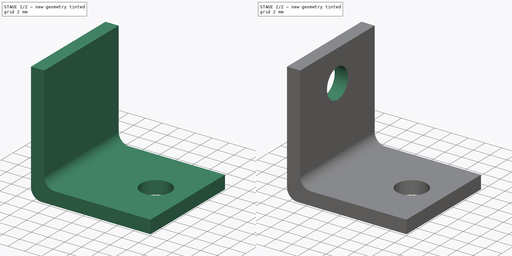
[diagram: build sequence overview — one tinted view per stage of 2, left to right]
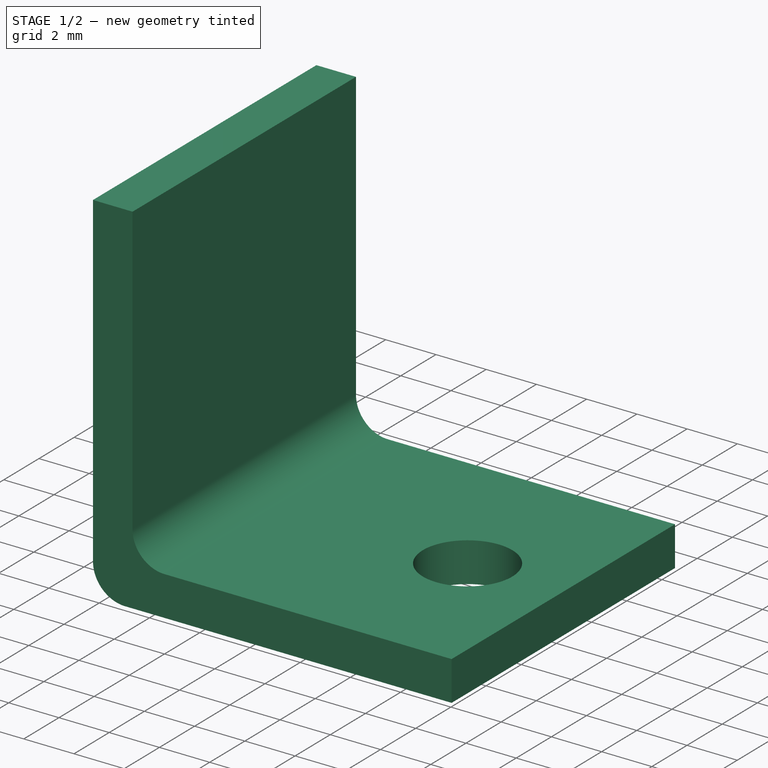
[diagram: stage 1 of 2 — iso view after this stage's code; geometry added in this stage tinted green]
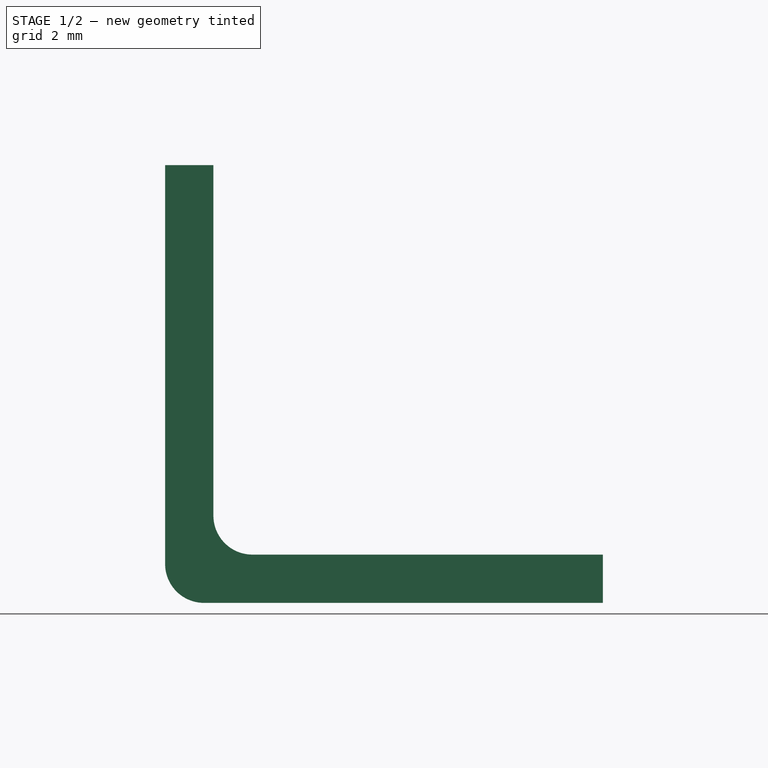
[diagram: stage 1 of 2 — front view after this stage's code; geometry added in this stage tinted green]
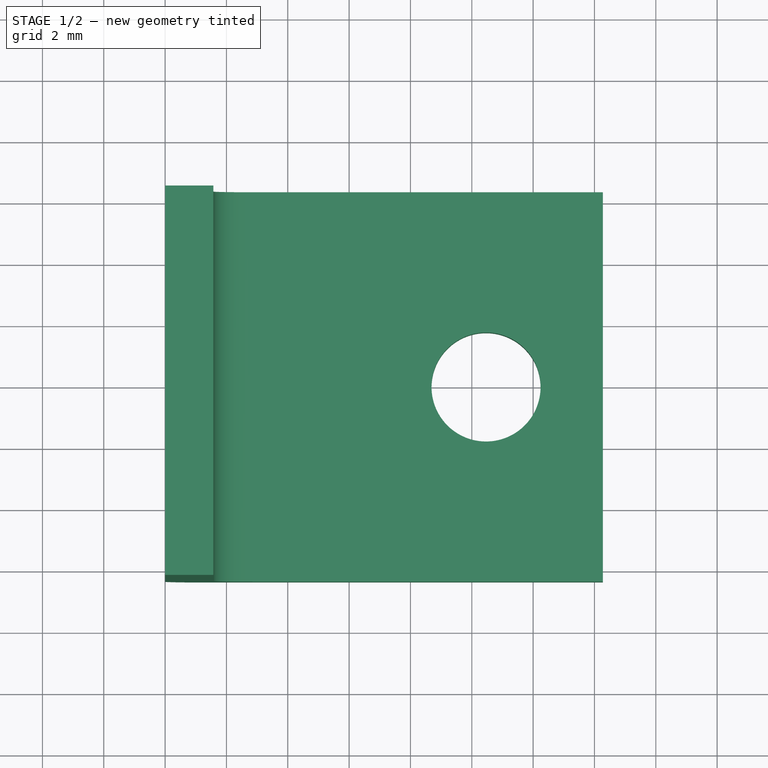
[diagram: stage 1 of 2 — top view after this stage's code; geometry added in this stage tinted green]
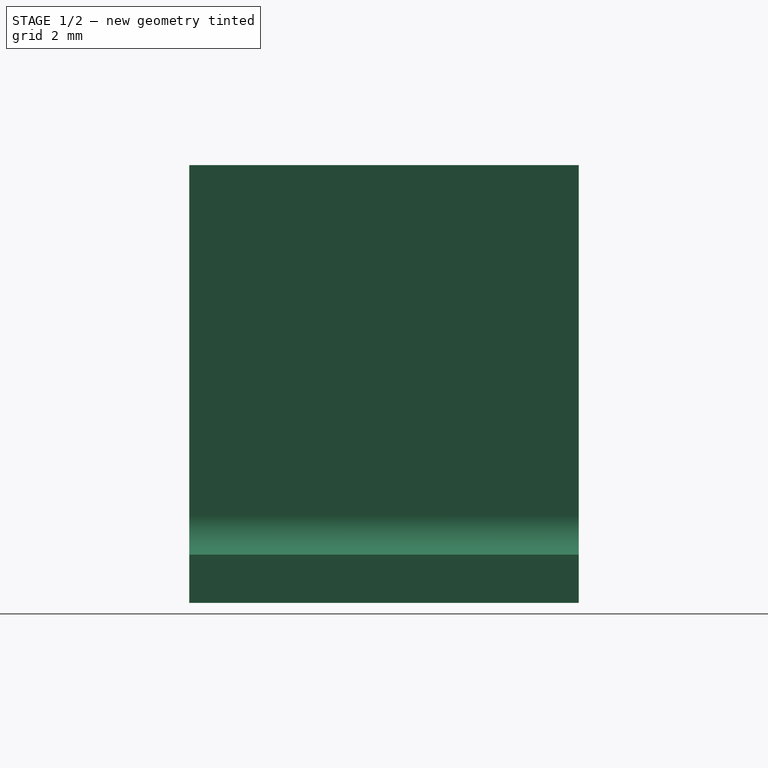
[diagram: stage 1 of 2 — right view after this stage's code; geometry added in this stage tinted green]
FCSTD DOCUMENT  (FreeCAD 0.21R33675 (Git))
Label: keystone_bracket
License: All rights reserved
LicenseURL: https://en.wikipedia.org/wiki/All_rights_reserved
objects: Sketcher::SketchObject×3, PartDesign::Pocket×2, Spreadsheet::Sheet×1, PartDesign::Pad×1, PartDesign::Body×1
note: 10 computed .brp shape members not serialized (recipe doc carries the construction recipe); baked Part::Feature solids carry a one-line shape summary decoded from their .brp

FEATURE [Spreadsheet::Sheet] Spreadsheet
  cells = A2='Design Parameters; D2='Digikey PN 36-4334-ND; E2='https://www.digikey.com/en/products/detail/keystone-electronics/4334/316182; A3='Length; B3(Length)==0.562 in; D3='Manufacturer Keystone Electronics; A4='Width; B4(Width)==0.5 in; D4='PN 4334; A5='Thickness; B5(Thickness)==0.062 in; A6='HoleOffset; B6(HoleOffset)==0.412 in; A7='HoleDiameter; B7(HoleDiameter)==0.14 in; A8='CornerRadius; B8(CornerRadius)==0.05 in; C8='Guess
FEATURE [Sketcher::SketchObject] Sketch  label="BracketProfileSketch"
  FullyConstrained = true
  MapMode = 5
  Placement = pos=(0,0,0) rot=(1,0,0;1.5708rad)
  Support = -> [XZ_Plane]
  expr: Constraints[12] = Spreadsheet.Length
  expr: Constraints[13] = Spreadsheet.Thickness
  expr: Constraints[19] = Spreadsheet.CornerRadius
  expr: Constraints[20] = Spreadsheet.Length
  sketch-geometry (10):
    g0: LineSegment StartX=0 StartY=14.2748 StartZ=0 EndX=0 EndY=1.27 EndZ=0
    g1: LineSegment StartX=1.27 StartY=0 StartZ=0 EndX=14.2748 EndY=0 EndZ=0
    g2: LineSegment StartX=14.2748 StartY=0 StartZ=0 EndX=14.2748 EndY=1.5748 EndZ=0
    g3: LineSegment StartX=14.2748 StartY=1.5748 StartZ=0 EndX=2.8448 EndY=1.5748 EndZ=0
    g4: LineSegment StartX=1.5748 StartY=2.8448 StartZ=0 EndX=1.5748 EndY=14.2748 EndZ=0
    g5: LineSegment StartX=1.5748 StartY=14.2748 StartZ=0 EndX=0 EndY=14.2748 EndZ=0
    g6: ArcOfCircle CenterX=1.27 CenterY=1.27 CenterZ=0 NormalX=0 NormalY=0 NormalZ=1 AngleXU=0 Radius=1.27 StartAngle=3.14159 EndAngle=4.71239
    g7: GeomPoint X=0 Y=0 Z=0
    g8: ArcOfCircle CenterX=2.8448 CenterY=2.8448 CenterZ=0 NormalX=0 NormalY=0 NormalZ=1 AngleXU=0 Radius=1.27 StartAngle=3.14159 EndAngle=4.71239
    g9: GeomPoint X=1.5748 Y=1.5748 Z=0
  constraints (26):
    c: Vertical(g0)
    c: Horizontal(g1)
    c: Coincident(g1,g2)
    c: Vertical(g2)
    c: Coincident(g2,g3)
    c: Horizontal(g3)
    c: Vertical(g4)
    c: Coincident(g4,g5)
    c: Coincident(g5,g0)
    c: Horizontal(g5)
    c: PointOnObject(g0,g-2)
    c: PointOnObject(g1,g-1)
    c: DistanceX(g7,g1) = 14.2748
    c: DistanceY(g2,g2) = 1.5748
    c: Equal(g2,g5)
    c: PointOnObject(g7,g0)
    c: PointOnObject(g7,g1)
    c: Tangent(g0,g6) = -1.5708
    c: Tangent(g1,g6) = -1.5708
    c: Radius(g6) = 1.27
    c: DistanceY(g7,g0) = 14.2748
    c: PointOnObject(g9,g4)
    c: PointOnObject(g9,g3)
    c: Tangent(g4,g8) = 1.5708
    c: Tangent(g3,g8) = 1.5708
    c: Equal(g6,g8)
FEATURE [PartDesign::Pad] Pad  label="BracketProfilePad"
  Direction = (0,-1,2e-16)
  Length = 12.7
  Length2 = 10
  Midplane = true
  Placement = pos=(0,0,0) rot=(1,0,0;1.5708rad)
  Profile = -> Sketch
  ReferenceAxis = -> Sketch [N_Axis]
  Type = 0
  expr: Length = Spreadsheet.Width
FEATURE [Sketcher::SketchObject] Sketch001  label="XYHoleSketch"
  FullyConstrained = true
  MapMode = 5
  Support = -> [XY_Plane]
  expr: Constraints[2] = Spreadsheet.HoleOffset
  expr: Constraints[4] = Spreadsheet.HoleDiameter
  sketch-geometry (2):
    g0: LineSegment StartX=0 StartY=0 StartZ=0 EndX=10.4648 EndY=0 EndZ=0
    g1: Circle CenterX=10.4648 CenterY=0 CenterZ=0 NormalX=0 NormalY=0 NormalZ=1 AngleXU=0 Radius=1.778
  constraints (5):
    c: Coincident(g0,g-1)
    c: Horizontal(g0)
    c: DistanceX(g0,g0) = 10.4648
    c: Coincident(g1,g0)
    c: Diameter(g1) = 3.556
FEATURE [PartDesign::Pocket] Pocket  label="XYHolePocket"
  BaseFeature = -> Pad
  Direction = (0,0,-1)
  Length = 5
  Length2 = 5
  Placement = pos=(0,0,0) rot=(1,0,0;1.5708rad)
  Profile = -> Sketch001
  ReferenceAxis = -> Sketch001 [N_Axis]
  Reversed = true
  Type = 1
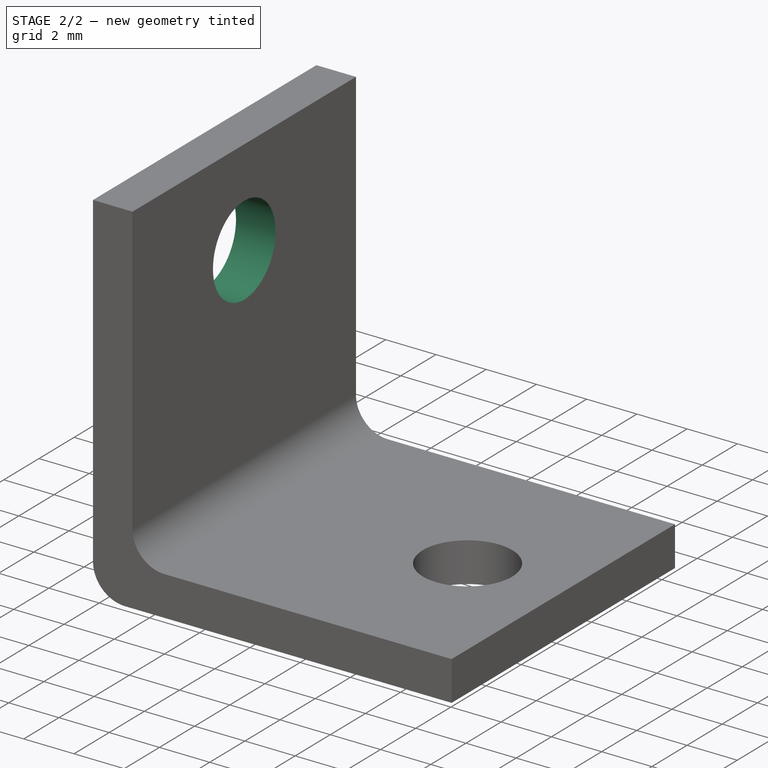
[diagram: stage 2 of 2 — iso view after this stage's code; geometry added in this stage tinted green]
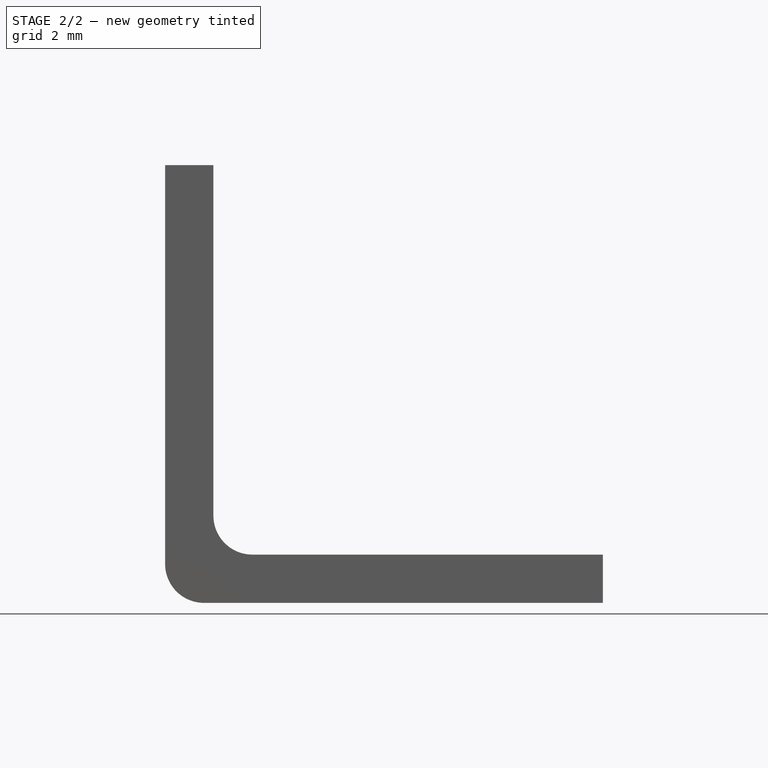
[diagram: stage 2 of 2 — front view after this stage's code; geometry added in this stage tinted green]
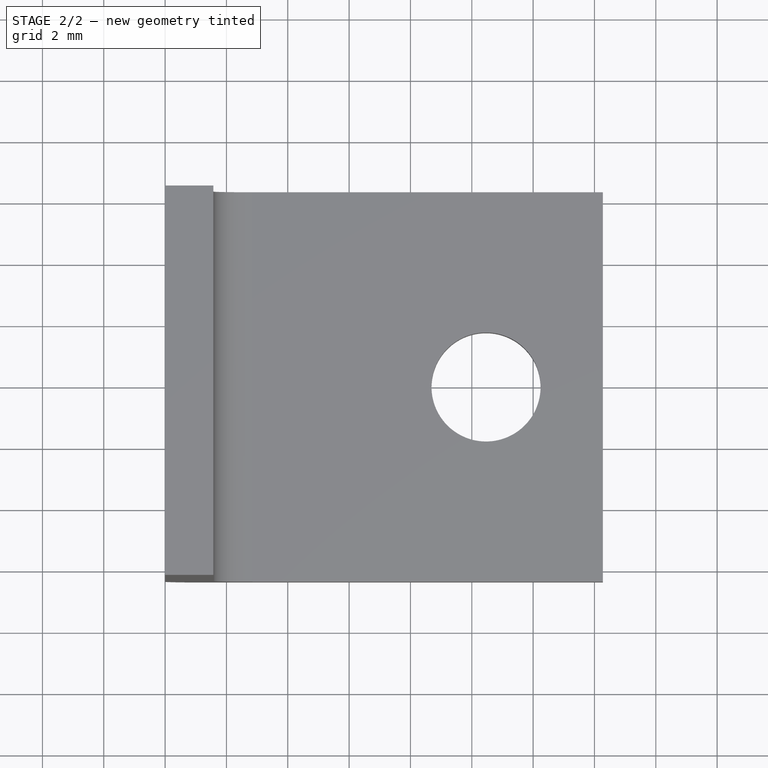
[diagram: stage 2 of 2 — top view after this stage's code; geometry added in this stage tinted green]
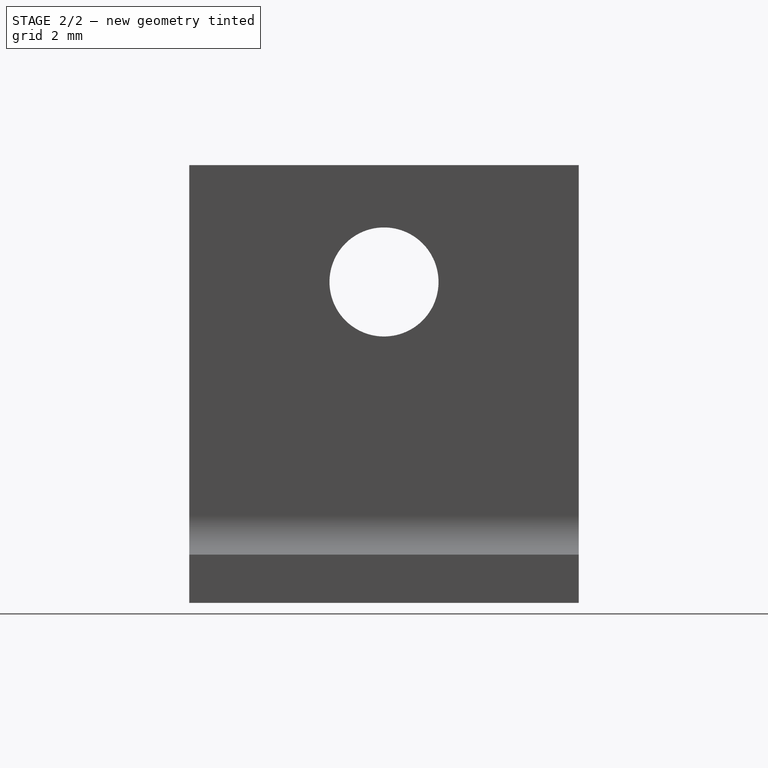
[diagram: stage 2 of 2 — right view after this stage's code; geometry added in this stage tinted green]
FEATURE [Sketcher::SketchObject] Sketch002  label="YZHoleSketch"
  FullyConstrained = true
  MapMode = 5
  Placement = pos=(0,0,0) rot=(0.57735,0.57735,0.57735;2.0944rad)
  Support = -> [YZ_Plane]
  expr: Constraints[2] = Spreadsheet.HoleOffset
  expr: Constraints[4] = Spreadsheet.HoleDiameter
  sketch-geometry (2):
    g0: LineSegment StartX=0 StartY=0 StartZ=0 EndX=0 EndY=10.4648 EndZ=0
    g1: Circle CenterX=0 CenterY=10.4648 CenterZ=0 NormalX=0 NormalY=0 NormalZ=1 AngleXU=0 Radius=1.778
  constraints (5):
    c: Coincident(g0,g-1)
    c: Vertical(g0)
    c: DistanceY(g0,g0) = 10.4648
    c: Coincident(g1,g0)
    c: Diameter(g1) = 3.556
FEATURE [PartDesign::Pocket] Pocket001  label="YZHolePocket"
  BaseFeature = -> Pocket
  Direction = (-1,2e-16,-3e-16)
  Length = 5
  Length2 = 5
  Placement = pos=(0,0,0) rot=(1,0,0;1.5708rad)
  Profile = -> Sketch002
  ReferenceAxis = -> Sketch002 [N_Axis]
  Reversed = true
  Type = 1
FEATURE [PartDesign::Body] Body
  Group = -> [Sketch,Pad,Sketch001,Pocket,Sketch002,Pocket001]
  Origin = -> Origin
  Tip = -> Pocket001
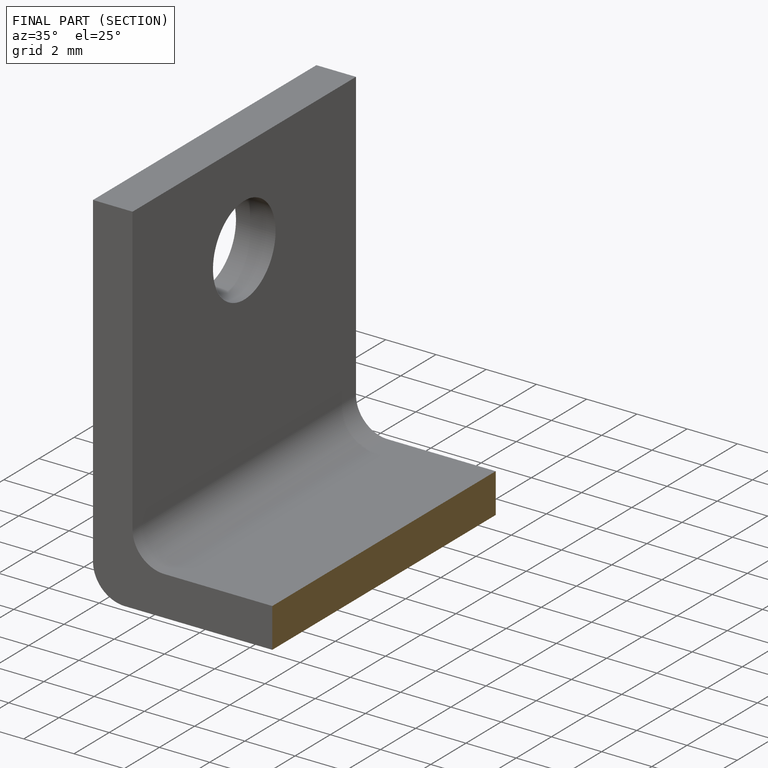
[diagram: finished part — half-section view (interior)]
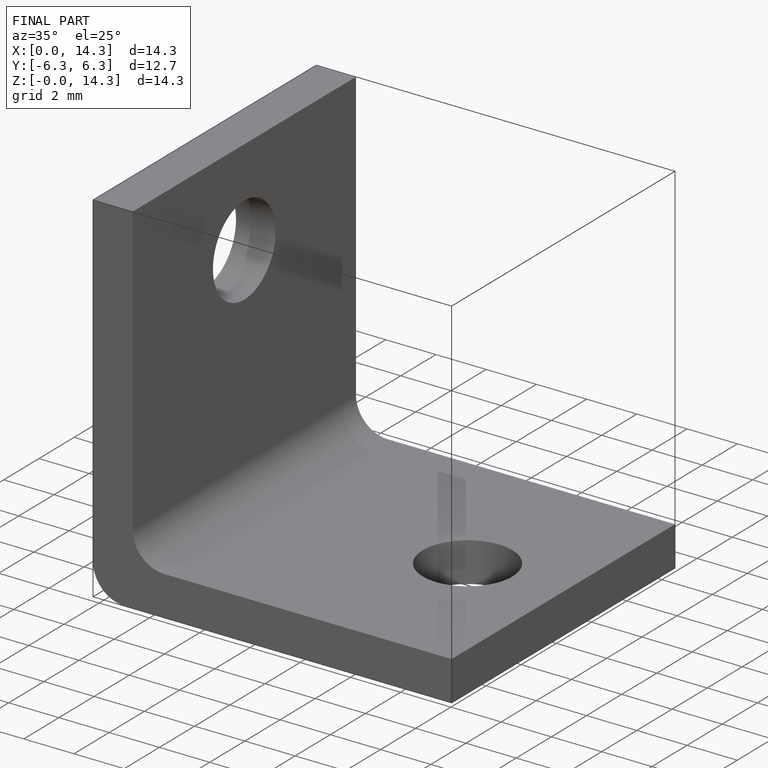
[diagram: finished part — iso view with bounding-box wireframe]
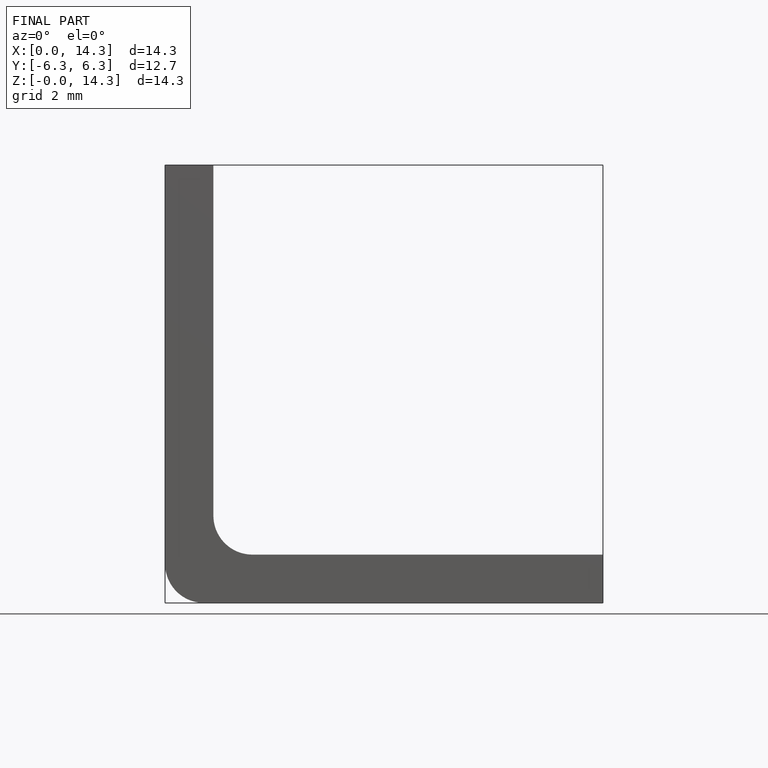
[diagram: finished part — front view with bounding-box wireframe]
